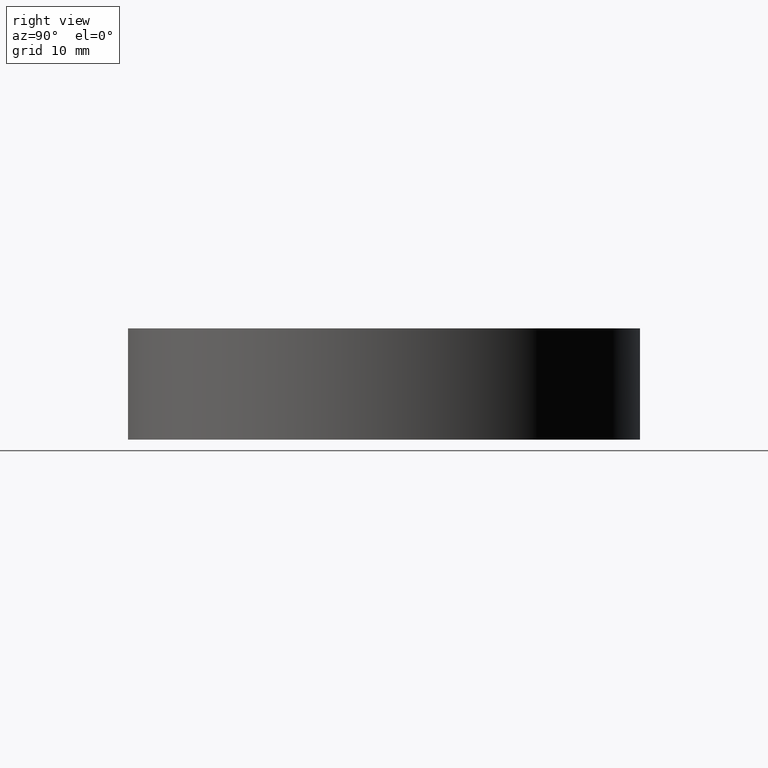
[diagram: clean part render]
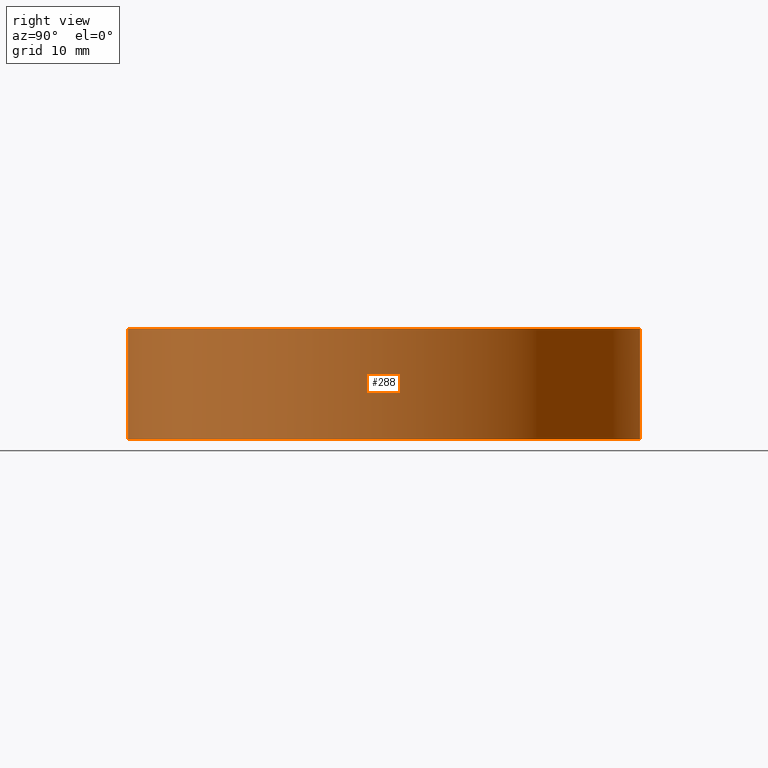
[diagram: same view with one face highlighted and labeled with its STEP entity id]
A machine part, right view. The second image highlights one B-rep face of the part: STEP entity #288.
In plain terms, the highlighted cylindrical surface (partial cylindrical patch) has radius 23 mm, axis along (0, 0, -1).
Its self-contained STEP definition (entity closure, byte-faithful):
#40=CARTESIAN_POINT('',(0.E0,1.230770033143E-14,0.E0));
#41=DIRECTION('',(0.E0,0.E0,-1.E0));
#42=DIRECTION('',(0.E0,1.E0,0.E0));
#43=AXIS2_PLACEMENT_3D('',#40,#41,#42);
#72=DIRECTION('',(0.E0,0.E0,-1.E0));
#73=VECTOR('',#72,1.E1);
#74=CARTESIAN_POINT('',(0.E0,-2.3E1,0.E0));
#75=LINE('',#74,#73);
#79=DIRECTION('',(0.E0,0.E0,-1.E0));
#80=VECTOR('',#79,1.E1);
#81=CARTESIAN_POINT('',(0.E0,2.3E1,0.E0));
#82=LINE('',#81,#80);
#86=CARTESIAN_POINT('',(0.E0,1.230770033143E-14,-1.E1));
#87=DIRECTION('',(0.E0,0.E0,1.E0));
#88=DIRECTION('',(0.E0,-1.E0,0.E0));
#89=AXIS2_PLACEMENT_3D('',#86,#87,#88);
#198=CARTESIAN_POINT('',(0.E0,-2.3E1,0.E0));
#199=CARTESIAN_POINT('',(0.E0,2.3E1,0.E0));
#200=VERTEX_POINT('',#198);
#201=VERTEX_POINT('',#199);
#206=CARTESIAN_POINT('',(0.E0,2.3E1,-1.E1));
#207=VERTEX_POINT('',#206);
#208=CARTESIAN_POINT('',(0.E0,-2.3E1,-1.E1));
#209=VERTEX_POINT('',#208);
#276=CARTESIAN_POINT('',(0.E0,1.230770033143E-14,5.E-1));
#277=DIRECTION('',(0.E0,0.E0,-1.E0));
#278=DIRECTION('',(0.E0,-1.E0,0.E0));
#279=AXIS2_PLACEMENT_3D('',#276,#277,#278);
#280=CYLINDRICAL_SURFACE('',#279,2.3E1);
#281=ORIENTED_EDGE('',*,*,#266,.T.);
#283=ORIENTED_EDGE('',*,*,#282,.F.);
#284=ORIENTED_EDGE('',*,*,#269,.F.);
#285=ORIENTED_EDGE('',*,*,#245,.F.);
#286=EDGE_LOOP('',(#281,#283,#284,#285));
#287=FACE_OUTER_BOUND('',#286,.F.);
#44=CIRCLE('',#43,2.3E1);
#90=CIRCLE('',#89,2.3E1);
#245=EDGE_CURVE('',#201,#200,#44,.T.);
#266=EDGE_CURVE('',#201,#207,#82,.T.);
#269=EDGE_CURVE('',#200,#209,#75,.T.);
#282=EDGE_CURVE('',#209,#207,#90,.T.);
#288=ADVANCED_FACE('',(#287),#280,.T.);